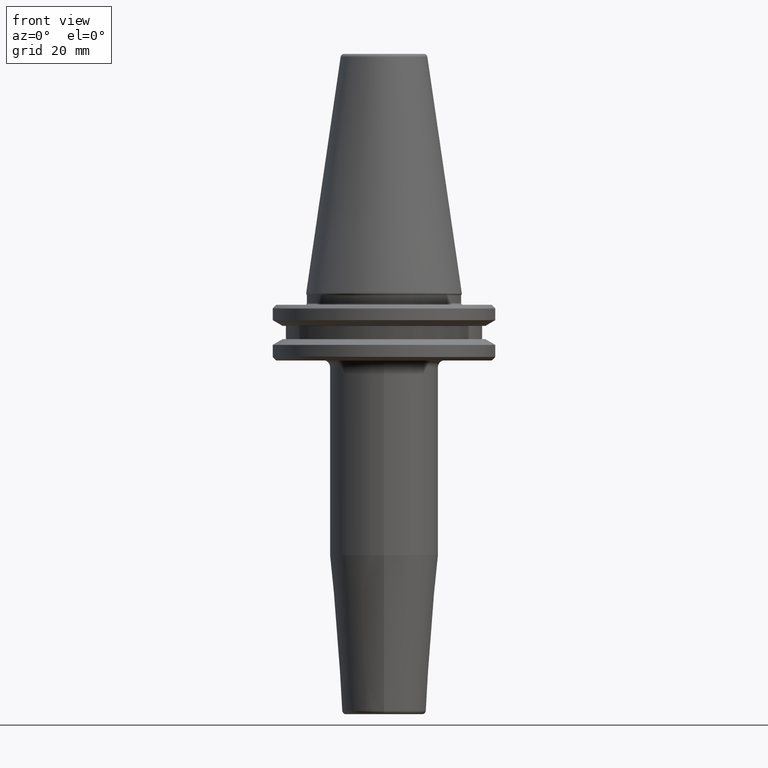
[diagram: clean part render]
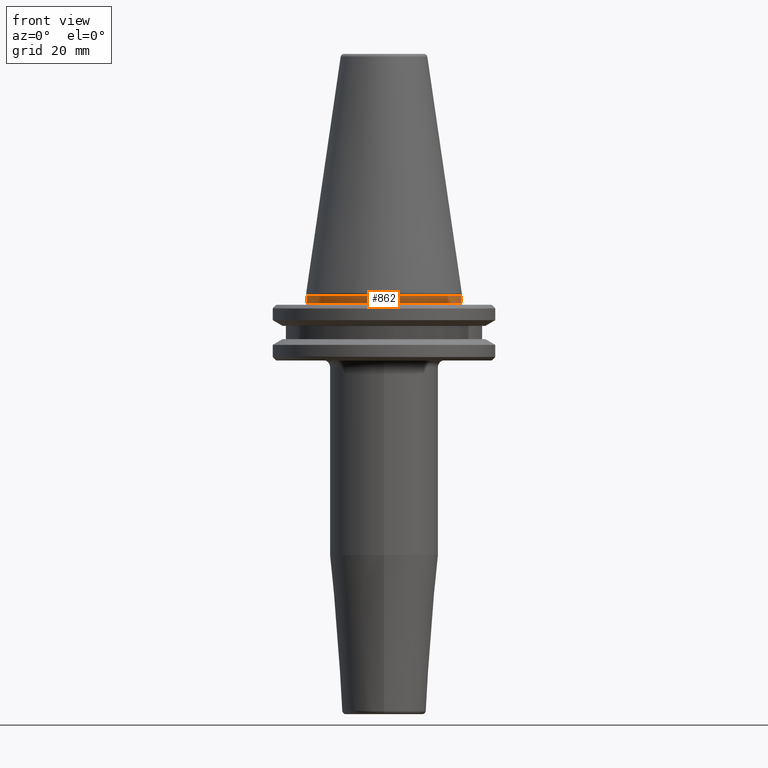
[diagram: same view with one face highlighted and labeled with its STEP entity id]
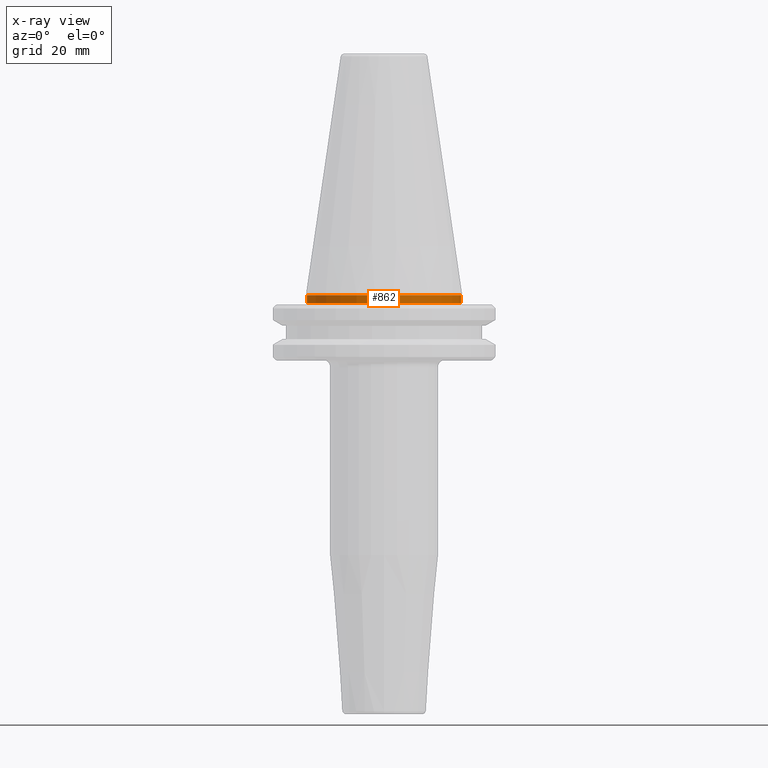
[diagram: x-ray of the same camera — body ghosted, the highlighted face saturated]
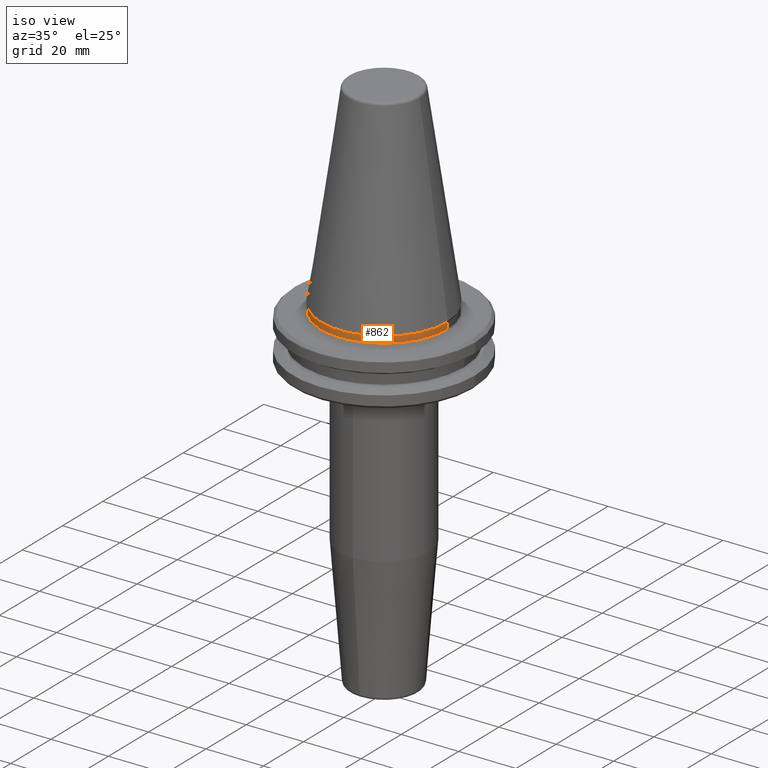
[diagram: same view with one face highlighted and labeled with its STEP entity id]
A machine part, front view. The second image highlights one B-rep face of the part: STEP entity #862.
The next image is the same camera in x-ray: the body ghosted, the highlighted face saturated — about 0% of this face is hidden behind the body in this view.
A second angle (iso view) of the same face is appended — the face is thin or edge-on in the first view.
In plain terms, the highlighted cylindrical surface (partial cylindrical patch) has radius 22 mm, axis along (-0, -0, 1).
Its self-contained STEP definition (entity closure, byte-faithful):
#2 = FACE_OUTER_BOUND ( 'NONE', #309, .T. ) ;
#7 = DIRECTION ( 'NONE',  ( 1.000000000000000000, 0.0000000000000000000, 0.0000000000000000000 ) ) ;
#26 = DIRECTION ( 'NONE',  ( -0.0000000000000000000, -0.0000000000000000000, 1.000000000000000000 ) ) ;
#28 = CIRCLE ( 'NONE', #69, 22.00000000000000000 ) ;
#53 = CARTESIAN_POINT ( 'NONE',  ( -22.00000000000000400, 2.724839128102861000E-015, -2.699999999999994000 ) ) ;
#69 = AXIS2_PLACEMENT_3D ( 'NONE', #400, #983, #7 ) ;
#80 = LINE ( 'NONE', #120, #1091 ) ;
#96 = DIRECTION ( 'NONE',  ( 1.000000000000000000, 0.0000000000000000000, 0.0000000000000000000 ) ) ;
#101 = CARTESIAN_POINT ( 'NONE',  ( 0.0000000000000000000, 0.0000000000000000000, 113.5216080541959500 ) ) ;
#120 = CARTESIAN_POINT ( 'NONE',  ( -22.00000000000000000, 2.694222958124176800E-015, 113.5216080541959500 ) ) ;
#149 = VERTEX_POINT ( 'NONE', #433 ) ;
#177 = DIRECTION ( 'NONE',  ( -0.0000000000000000000, -0.0000000000000000000, 1.000000000000000000 ) ) ;
#226 = CARTESIAN_POINT ( 'NONE',  ( 22.00000000000000000, 0.0000000000000000000, -0.4825140571146635500 ) ) ;
#239 = AXIS2_PLACEMENT_3D ( 'NONE', #595, #26, #687 ) ;
#261 = VECTOR ( 'NONE', #1101, 1000.000000000000000 ) ;
#299 = DIRECTION ( 'NONE',  ( -0.0000000000000000000, -0.0000000000000000000, 1.000000000000000000 ) ) ;
#309 = EDGE_LOOP ( 'NONE', ( #876, #1090, #1190, #1015 ) ) ;
#400 = CARTESIAN_POINT ( 'NONE',  ( 0.0000000000000000000, 0.0000000000000000000, -0.4825140571146635500 ) ) ;
#411 = CARTESIAN_POINT ( 'NONE',  ( 22.00000000000000000, 0.0000000000000000000, 113.5216080541959500 ) ) ;
#433 = CARTESIAN_POINT ( 'NONE',  ( -22.00000000000000000, 2.694222958124176800E-015, -0.4825140571146635500 ) ) ;
#479 = VERTEX_POINT ( 'NONE', #53 ) ;
#545 = EDGE_CURVE ( 'NONE', #149, #943, #28, .T. ) ;
#595 = CARTESIAN_POINT ( 'NONE',  ( 0.0000000000000000000, 0.0000000000000000000, -2.699999999999994000 ) ) ;
#619 = AXIS2_PLACEMENT_3D ( 'NONE', #101, #299, #96 ) ;
#633 = VERTEX_POINT ( 'NONE', #822 ) ;
#687 = DIRECTION ( 'NONE',  ( 1.000000000000000000, 0.0000000000000000000, 0.0000000000000000000 ) ) ;
#740 = CYLINDRICAL_SURFACE ( 'NONE', #619, 22.00000000000000000 ) ;
#822 = CARTESIAN_POINT ( 'NONE',  ( 22.00000000000000400, 0.0000000000000000000, -2.699999999999994000 ) ) ;
#862 = ADVANCED_FACE ( 'NONE', ( #2 ), #740, .T. ) ;
#864 = CIRCLE ( 'NONE', #239, 22.00000000000000400 ) ;
#876 = ORIENTED_EDGE ( 'NONE', *, *, #939, .F. ) ;
#939 = EDGE_CURVE ( 'NONE', #479, #149, #80, .T. ) ;
#943 = VERTEX_POINT ( 'NONE', #226 ) ;
#983 = DIRECTION ( 'NONE',  ( -0.0000000000000000000, -0.0000000000000000000, 1.000000000000000000 ) ) ;
#1010 = EDGE_CURVE ( 'NONE', #633, #943, #1037, .T. ) ;
#1015 = ORIENTED_EDGE ( 'NONE', *, *, #545, .F. ) ;
#1037 = LINE ( 'NONE', #411, #261 ) ;
#1090 = ORIENTED_EDGE ( 'NONE', *, *, #1202, .T. ) ;
#1091 = VECTOR ( 'NONE', #177, 1000.000000000000000 ) ;
#1101 = DIRECTION ( 'NONE',  ( -0.0000000000000000000, -0.0000000000000000000, 1.000000000000000000 ) ) ;
#1190 = ORIENTED_EDGE ( 'NONE', *, *, #1010, .T. ) ;
#1202 = EDGE_CURVE ( 'NONE', #479, #633, #864, .T. ) ;